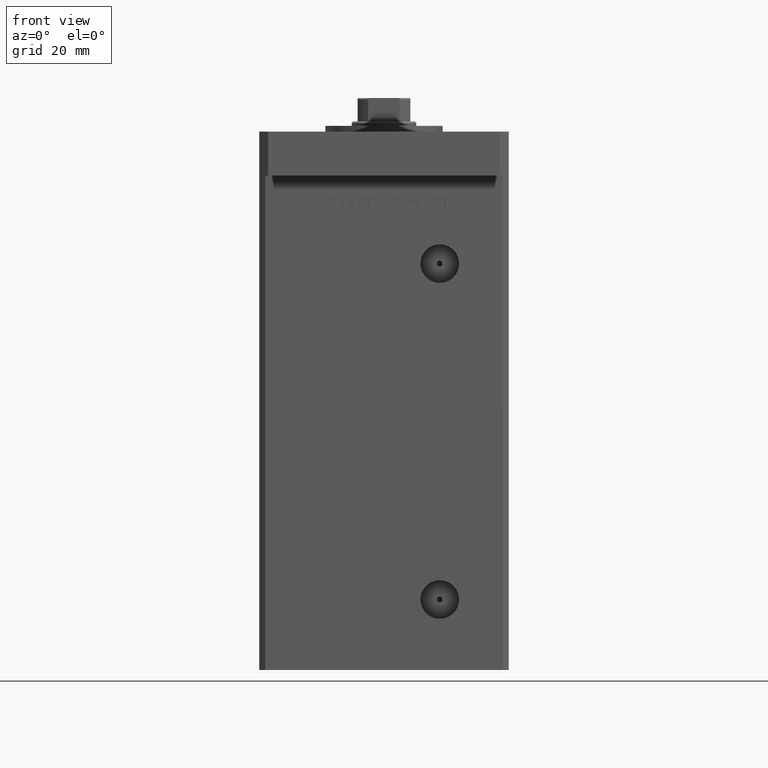
[diagram: clean part render]
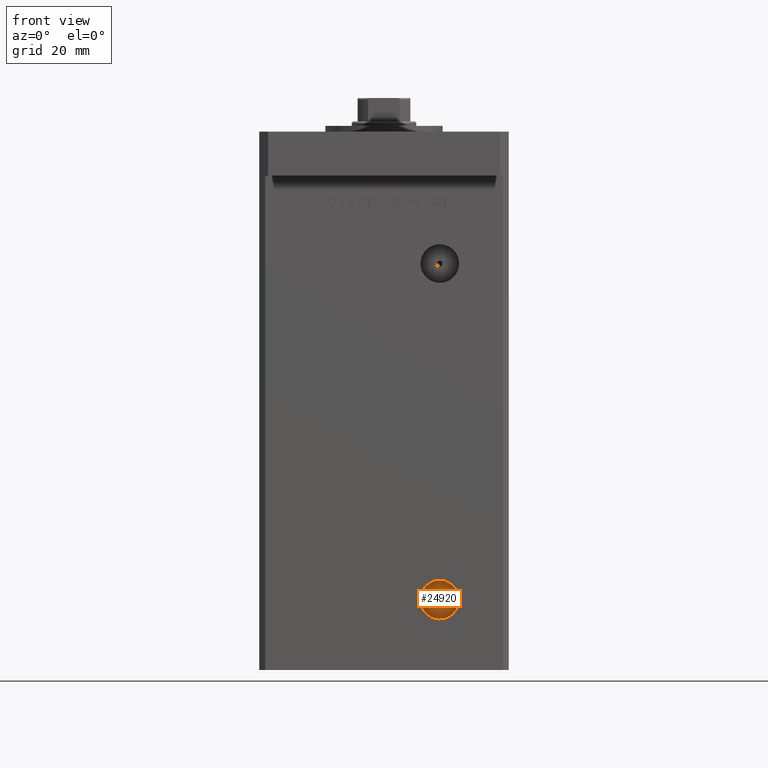
[diagram: same view with one face highlighted and labeled with its STEP entity id]
A machine part, front view. The second image highlights one B-rep face of the part: STEP entity #24920.
In plain terms, the highlighted planar face has unit normal (0, -1, 0).
Its self-contained STEP definition (entity closure, byte-faithful):
#826 = EDGE_CURVE ( 'NONE', #14646, #28228, #33139, .T. ) ;
#1371 = CARTESIAN_POINT ( 'NONE',  ( 18.99999999999998934, -24.50000000000000711, 9.000000000000007105 ) ) ;
#1473 = AXIS2_PLACEMENT_3D ( 'NONE', #1371, #34480, #17412 ) ;
#1861 = DIRECTION ( 'NONE',  ( 0.000000000000000000, -1.000000000000000000, 0.000000000000000000 ) ) ;
#2499 = FACE_BOUND ( 'NONE', #46968, .T. ) ;
#2967 = ORIENTED_EDGE ( 'NONE', *, *, #33750, .T. ) ;
#3306 = CARTESIAN_POINT ( 'NONE',  ( 18.99999999999998934, -24.50000000000000711, 9.000000000000007105 ) ) ;
#7378 = VERTEX_POINT ( 'NONE', #23107 ) ;
#9041 = EDGE_LOOP ( 'NONE', ( #2967, #50600 ) ) ;
#9595 = CARTESIAN_POINT ( 'NONE',  ( 18.99999999999998934, -24.50000000000000711, 9.000000000000007105 ) ) ;
#10159 = CARTESIAN_POINT ( 'NONE',  ( 18.99999999999998934, -24.50000000000000711, 2.420000000000009699 ) ) ;
#10264 = CARTESIAN_POINT ( 'NONE',  ( 18.99999999999998934, -24.50000000000000711, 9.000000000000007105 ) ) ;
#11454 = AXIS2_PLACEMENT_3D ( 'NONE', #9595, #26709, #13427 ) ;
#13427 = DIRECTION ( 'NONE',  ( 0.000000000000000000, 0.000000000000000000, -1.000000000000000000 ) ) ;
#14646 = VERTEX_POINT ( 'NONE', #40898 ) ;
#16126 = DIRECTION ( 'NONE',  ( 0.000000000000000000, 0.000000000000000000, -1.000000000000000000 ) ) ;
#16587 = AXIS2_PLACEMENT_3D ( 'NONE', #33491, #24810, #16126 ) ;
#17412 = DIRECTION ( 'NONE',  ( 0.000000000000000000, 0.000000000000000000, -1.000000000000000000 ) ) ;
#18140 = ORIENTED_EDGE ( 'NONE', *, *, #50612, .F. ) ;
#19862 = DIRECTION ( 'NONE',  ( 0.000000000000000000, -0.000000000000000000, -1.000000000000000000 ) ) ;
#20127 = CARTESIAN_POINT ( 'NONE',  ( 18.99999999999998934, -24.50000000000000711, 10.00000000000000888 ) ) ;
#21457 = AXIS2_PLACEMENT_3D ( 'NONE', #3306, #24207, #19862 ) ;
#22332 = ORIENTED_EDGE ( 'NONE', *, *, #28951, .F. ) ;
#23107 = CARTESIAN_POINT ( 'NONE',  ( 18.99999999999998934, -24.50000000000000711, 8.000000000000007105 ) ) ;
#23942 = PLANE ( 'NONE',  #21457 ) ;
#24207 = DIRECTION ( 'NONE',  ( 0.000000000000000000, -1.000000000000000000, 0.000000000000000000 ) ) ;
#24810 = DIRECTION ( 'NONE',  ( 0.000000000000000000, -1.000000000000000000, 0.000000000000000000 ) ) ;
#24920 = ADVANCED_FACE ( 'NONE', ( #2499, #40481 ), #23942, .T. ) ;
#25754 = CIRCLE ( 'NONE', #1473, 1.000000000000000888 ) ;
#26709 = DIRECTION ( 'NONE',  ( 0.000000000000000000, -1.000000000000000000, 0.000000000000000000 ) ) ;
#27644 = AXIS2_PLACEMENT_3D ( 'NONE', #10264, #1861, #35791 ) ;
#28228 = VERTEX_POINT ( 'NONE', #10159 ) ;
#28951 = EDGE_CURVE ( 'NONE', #7378, #31929, #25754, .T. ) ;
#31929 = VERTEX_POINT ( 'NONE', #20127 ) ;
#33139 = CIRCLE ( 'NONE', #11454, 6.579999999999998295 ) ;
#33491 = CARTESIAN_POINT ( 'NONE',  ( 18.99999999999998934, -24.50000000000000711, 9.000000000000007105 ) ) ;
#33750 = EDGE_CURVE ( 'NONE', #28228, #14646, #52743, .T. ) ;
#34480 = DIRECTION ( 'NONE',  ( 0.000000000000000000, -1.000000000000000000, 0.000000000000000000 ) ) ;
#35791 = DIRECTION ( 'NONE',  ( 0.000000000000000000, 0.000000000000000000, -1.000000000000000000 ) ) ;
#40481 = FACE_OUTER_BOUND ( 'NONE', #9041, .T. ) ;
#40898 = CARTESIAN_POINT ( 'NONE',  ( 18.99999999999998934, -24.50000000000000711, 15.58000000000000718 ) ) ;
#46968 = EDGE_LOOP ( 'NONE', ( #22332, #18140 ) ) ;
#49520 = CIRCLE ( 'NONE', #16587, 1.000000000000000888 ) ;
#50600 = ORIENTED_EDGE ( 'NONE', *, *, #826, .T. ) ;
#50612 = EDGE_CURVE ( 'NONE', #31929, #7378, #49520, .T. ) ;
#52743 = CIRCLE ( 'NONE', #27644, 6.579999999999998295 ) ;